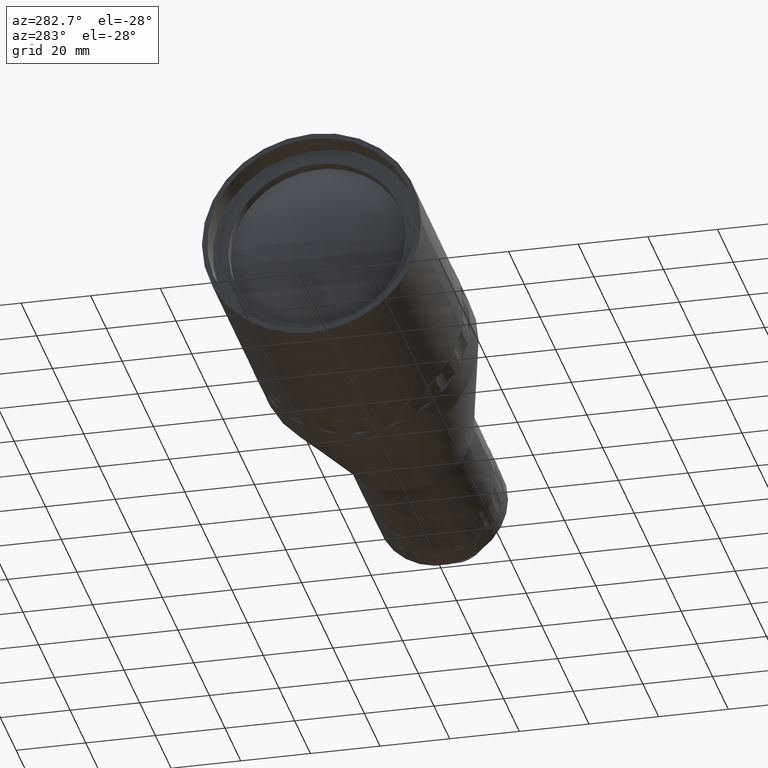
[diagram: clean part render]
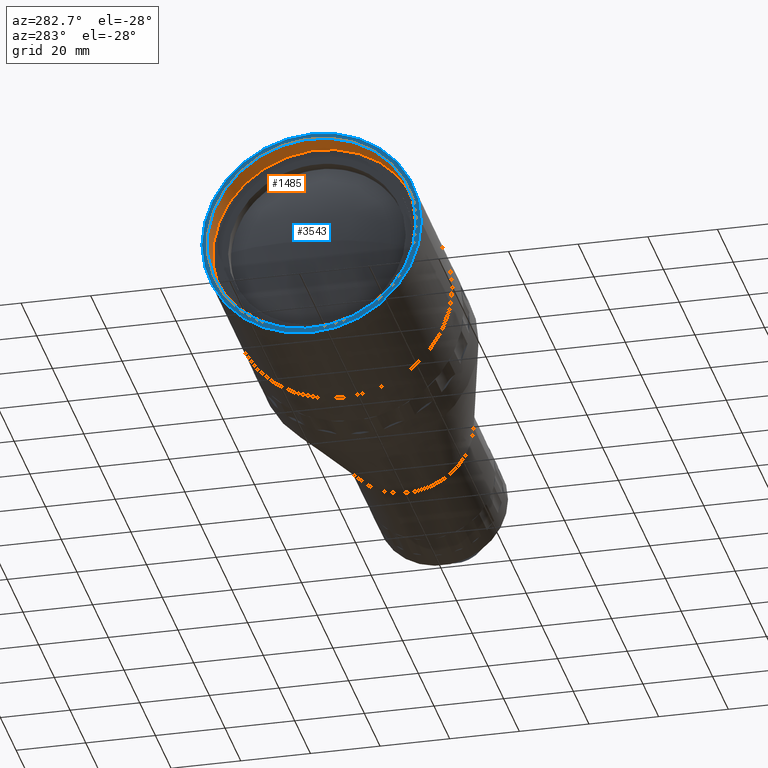
[diagram: same view with the hole feature highlighted: cylindrical wall and planar end face, labeled with their STEP entity ids]
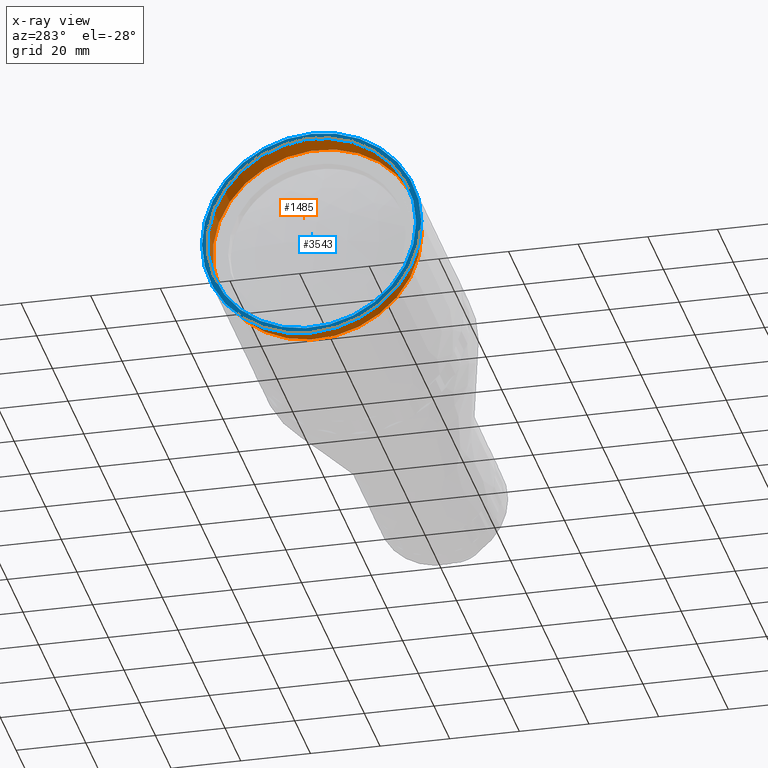
[diagram: x-ray of the same camera — body ghosted, the hole faces saturated]
A machine part, auxiliary view. The highlighted faces form one hole feature of diameter 60 mm: the cylindrical wall (entity #1485, orange) and its adjacent planar end face (entity #3543, blue) — they share a circular edge in the B-rep.
The next image is the same camera in x-ray (body ghosted, the hole faces saturated) — the bore reads through the body.
Wall:
#88 = ORIENTED_EDGE ( 'NONE', *, *, #974, .T. ) ;
#96 = VERTEX_POINT ( 'NONE', #2545 ) ;
#179 = FACE_OUTER_BOUND ( 'NONE', #1712, .T. ) ;
#465 = VERTEX_POINT ( 'NONE', #4322 ) ;
#553 = CARTESIAN_POINT ( 'NONE',  ( -59.36906378044780297, 5.711987127917000251, -0.6039616615827261281 ) ) ;
#623 = AXIS2_PLACEMENT_3D ( 'NONE', #553, #1976, #2680 ) ;
#866 = CARTESIAN_POINT ( 'NONE',  ( -59.36906378044779586, 5.711987127917000251, -0.6039616615827261281 ) ) ;
#935 = EDGE_CURVE ( 'NONE', #465, #465, #3940, .T. ) ;
#974 = EDGE_CURVE ( 'NONE', #96, #96, #3711, .T. ) ;
#1232 = CARTESIAN_POINT ( 'NONE',  ( -52.36906378044789534, 5.711987127917001139, -0.6039616615827261281 ) ) ;
#1317 = AXIS2_PLACEMENT_3D ( 'NONE', #866, #2227, #3034 ) ;
#1485 = ADVANCED_FACE ( 'NONE', ( #2424, #179 ), #4450, .F. ) ;
#1712 = EDGE_LOOP ( 'NONE', ( #1767 ) ) ;
#1767 = ORIENTED_EDGE ( 'NONE', *, *, #935, .F. ) ;
#1959 = DIRECTION ( 'NONE',  ( 2.312964634635742957E-16, -1.000000000000000000, 0.000000000000000000 ) ) ;
#1976 = DIRECTION ( 'NONE',  ( -1.000000000000000000, -1.226679102604723662E-16, -0.000000000000000000 ) ) ;
#2227 = DIRECTION ( 'NONE',  ( -1.000000000000000000, -1.226679102604723662E-16, -0.000000000000000000 ) ) ;
#2424 = FACE_OUTER_BOUND ( 'NONE', #3680, .T. ) ;
#2545 = CARTESIAN_POINT ( 'NONE',  ( -59.36906378044778876, -24.28801287208300153, -0.6039616615827261281 ) ) ;
#2680 = DIRECTION ( 'NONE',  ( 2.312964634635742957E-16, -1.000000000000000000, 0.000000000000000000 ) ) ;
#3034 = DIRECTION ( 'NONE',  ( 2.312964634635742957E-16, -1.000000000000000000, 0.000000000000000000 ) ) ;
#3408 = AXIS2_PLACEMENT_3D ( 'NONE', #1232, #4062, #1959 ) ;
#3680 = EDGE_LOOP ( 'NONE', ( #88 ) ) ;
#3711 = CIRCLE ( 'NONE', #1317, 30.00000000000000000 ) ;
#3940 = CIRCLE ( 'NONE', #3408, 30.00000000000000000 ) ;
#4062 = DIRECTION ( 'NONE',  ( -1.000000000000000000, -1.226679102604723662E-16, -0.000000000000000000 ) ) ;
#4322 = CARTESIAN_POINT ( 'NONE',  ( -52.36906378044788823, -24.28801287208299797, -0.6039616615827261281 ) ) ;
#4450 = CYLINDRICAL_SURFACE ( 'NONE', #623, 30.00000000000000000 ) ;
End face:
#96 = VERTEX_POINT ( 'NONE', #2545 ) ;
#196 = AXIS2_PLACEMENT_3D ( 'NONE', #4558, #1413, #2858 ) ;
#443 = EDGE_LOOP ( 'NONE', ( #4476 ) ) ;
#601 = FACE_BOUND ( 'NONE', #443, .T. ) ;
#866 = CARTESIAN_POINT ( 'NONE',  ( -59.36906378044779586, 5.711987127917000251, -0.6039616615827261281 ) ) ;
#974 = EDGE_CURVE ( 'NONE', #96, #96, #3711, .T. ) ;
#1317 = AXIS2_PLACEMENT_3D ( 'NONE', #866, #2227, #3034 ) ;
#1392 = FACE_OUTER_BOUND ( 'NONE', #3162, .T. ) ;
#1413 = DIRECTION ( 'NONE',  ( -1.000000000000000000, -1.226679102604723662E-16, -0.000000000000000000 ) ) ;
#1746 = PLANE ( 'NONE',  #3394 ) ;
#2001 = CARTESIAN_POINT ( 'NONE',  ( -59.36906378044779586, 5.486586960725205868E-31, -0.6039616615827261281 ) ) ;
#2227 = DIRECTION ( 'NONE',  ( -1.000000000000000000, -1.226679102604723662E-16, -0.000000000000000000 ) ) ;
#2230 = ORIENTED_EDGE ( 'NONE', *, *, #3961, .T. ) ;
#2256 = CARTESIAN_POINT ( 'NONE',  ( -59.36906378044778876, -25.78801287208300153, -0.6039616615827261281 ) ) ;
#2545 = CARTESIAN_POINT ( 'NONE',  ( -59.36906378044778876, -24.28801287208300153, -0.6039616615827261281 ) ) ;
#2858 = DIRECTION ( 'NONE',  ( 2.202823461557850341E-16, -1.000000000000000000, 0.000000000000000000 ) ) ;
#3034 = DIRECTION ( 'NONE',  ( 2.312964634635742957E-16, -1.000000000000000000, 0.000000000000000000 ) ) ;
#3050 = VERTEX_POINT ( 'NONE', #2256 ) ;
#3162 = EDGE_LOOP ( 'NONE', ( #2230 ) ) ;
#3394 = AXIS2_PLACEMENT_3D ( 'NONE', #2001, #3772, #4486 ) ;
#3543 = ADVANCED_FACE ( 'NONE', ( #1392, #601 ), #1746, .T. ) ;
#3711 = CIRCLE ( 'NONE', #1317, 30.00000000000000000 ) ;
#3772 = DIRECTION ( 'NONE',  ( -1.000000000000000000, -1.226679102604723662E-16, 0.000000000000000000 ) ) ;
#3961 = EDGE_CURVE ( 'NONE', #3050, #3050, #4228, .T. ) ;
#4228 = CIRCLE ( 'NONE', #196, 31.50000000000000000 ) ;
#4476 = ORIENTED_EDGE ( 'NONE', *, *, #974, .F. ) ;
#4486 = DIRECTION ( 'NONE',  ( 1.226679102604723662E-16, -1.000000000000000000, 0.000000000000000000 ) ) ;
#4558 = CARTESIAN_POINT ( 'NONE',  ( -59.36906378044779586, 5.711987127917000251, -0.6039616615827261281 ) ) ;